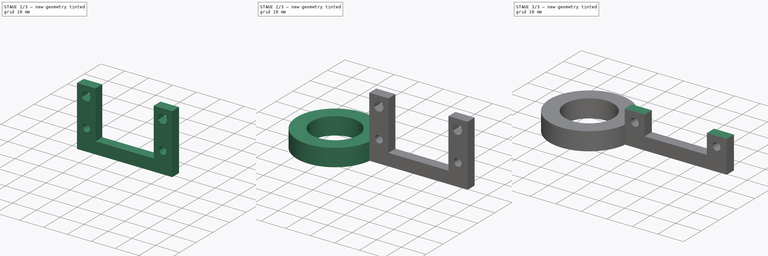
[diagram: build sequence overview — one tinted view per stage of 3, left to right]
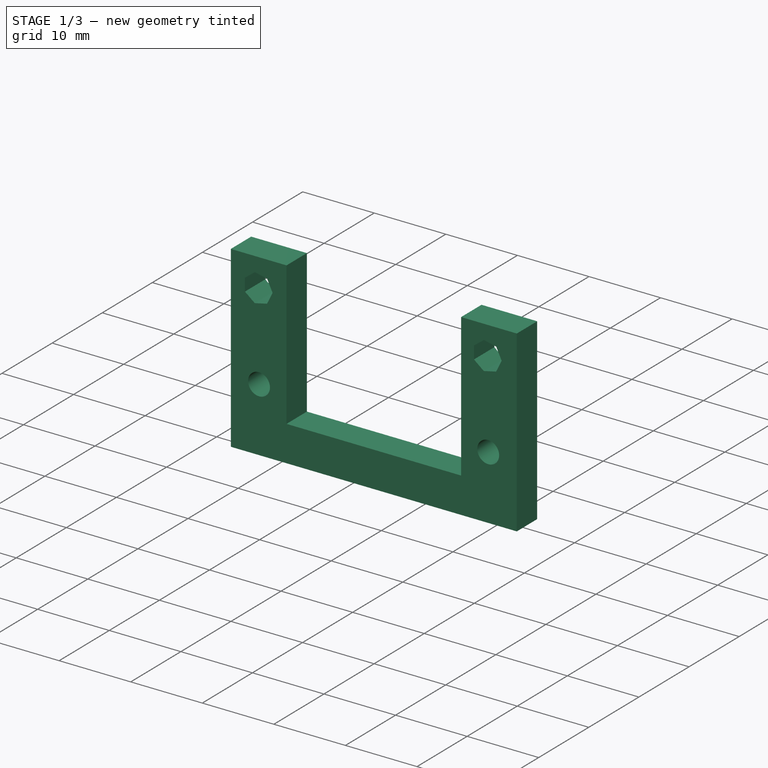
[diagram: stage 1 of 3 — iso view after this stage's code; geometry added in this stage tinted green]
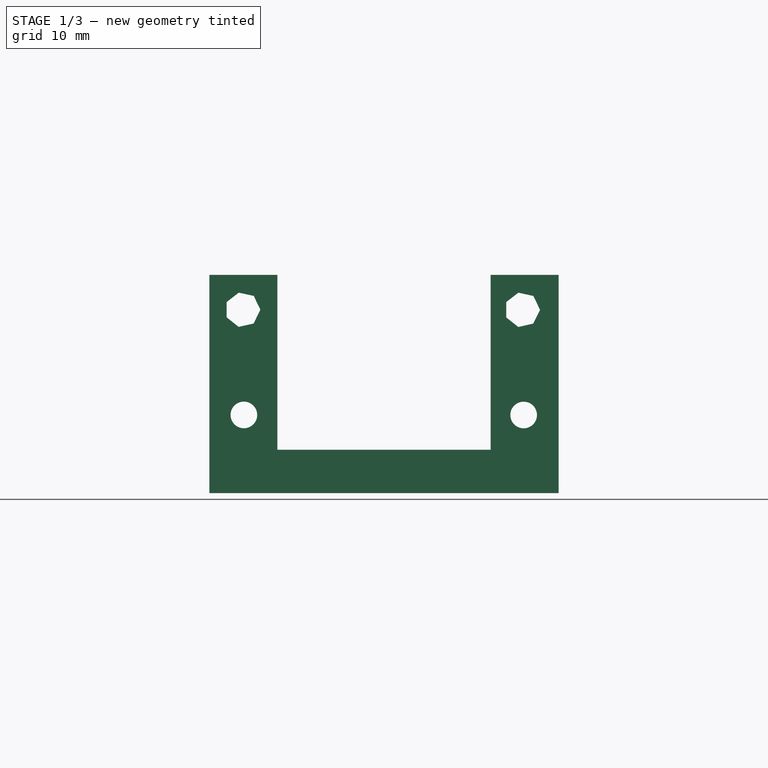
[diagram: stage 1 of 3 — front view after this stage's code; geometry added in this stage tinted green]
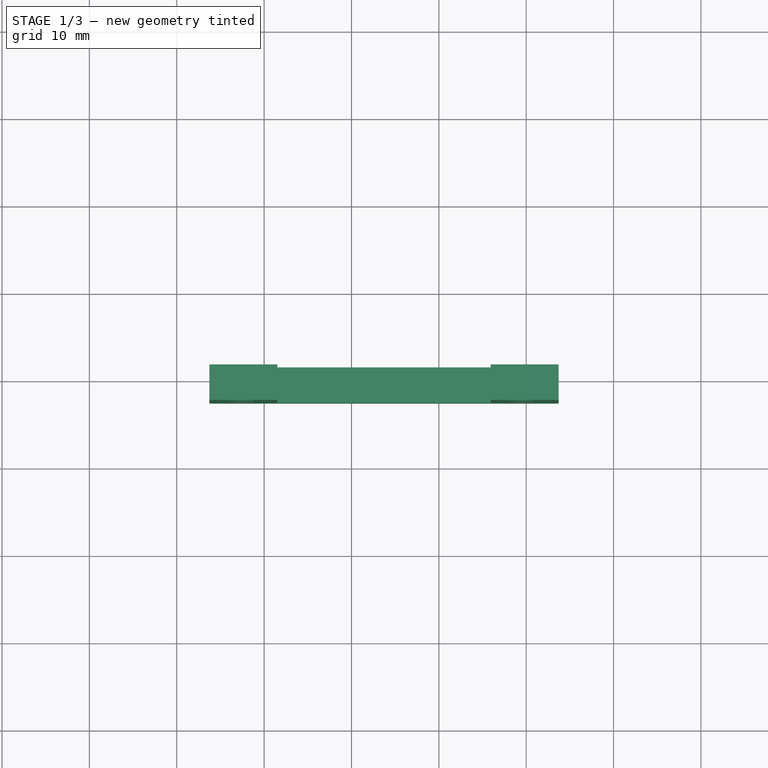
[diagram: stage 1 of 3 — top view after this stage's code; geometry added in this stage tinted green]
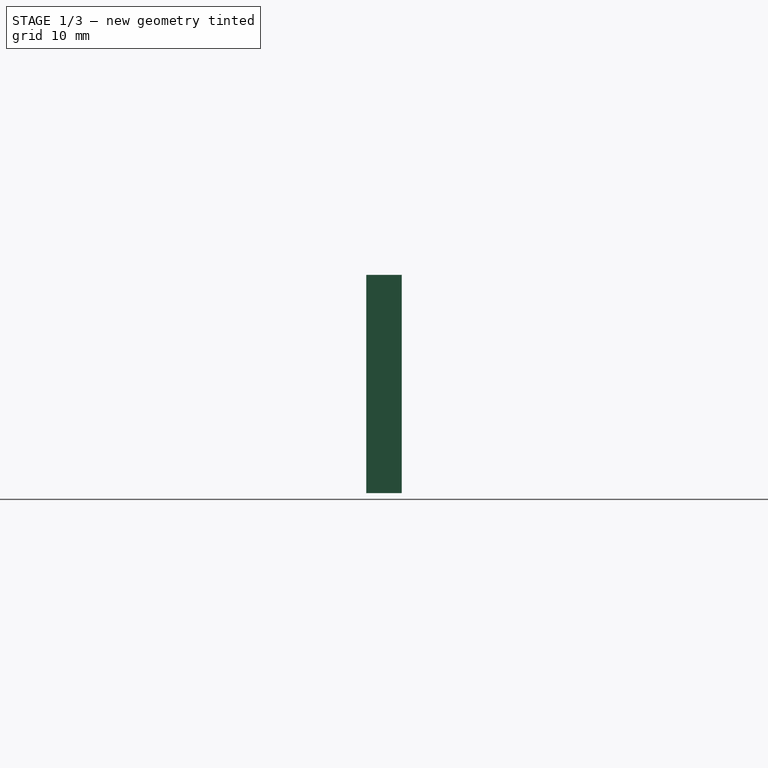
[diagram: stage 1 of 3 — right view after this stage's code; geometry added in this stage tinted green]
FCSTD DOCUMENT  (FreeCAD 0.16R6712 (Git))
Label: 18mm sensor holder
License: All rights reserved
LicenseURL: http://en.wikipedia.org/wiki/All_rights_reserved
objects: Sketcher::SketchObject×3, PartDesign::Pad×2, PartDesign::Pocket×1, Part::Box×1, Part::MultiFuse×1, Part::Cut×1
note: 12 computed .brp shape members not serialized (recipe doc carries the construction recipe); baked Part::Feature solids carry a one-line shape summary decoded from their .brp

FEATURE [Sketcher::SketchObject] Sketch001  label="bracket"
  Placement = pos=(0,-62.5234,0) rot=(1,0,0;1.5708rad)
  sketch-geometry (8):
    g0: LineSegment StartX=-26.2561 StartY=0.01423 StartZ=0 EndX=-26.2561 EndY=25.0008 EndZ=0
    g1: LineSegment StartX=-26.2561 StartY=25.0008 StartZ=0 EndX=-18.4751 EndY=25.0008 EndZ=0
    g2: LineSegment StartX=-18.4751 StartY=25.0008 StartZ=0 EndX=-18.4751 EndY=4.98502 EndZ=0
    g3: LineSegment StartX=-18.4751 StartY=4.98502 StartZ=0 EndX=5.92214 EndY=4.98502 EndZ=0
    g4: LineSegment StartX=5.92214 StartY=4.98502 StartZ=0 EndX=5.92214 EndY=25.0008 EndZ=0
    g5: LineSegment StartX=5.92214 StartY=25.0008 StartZ=0 EndX=13.7032 EndY=25.0008 EndZ=0
    g6: LineSegment StartX=13.7032 StartY=25.0008 StartZ=0 EndX=13.7032 EndY=0.01423 EndZ=0
    g7: LineSegment StartX=-26.2561 StartY=0.01423 StartZ=0 EndX=13.7032 EndY=0.01423 EndZ=0
  constraints (25):
    c: Horizontal(g1)
    c: Coincident(g2,g1)
    c: Coincident(g3,g2)
    c: Vertical(g4)
    c: Coincident(g5,g4)
    c: Horizontal(g5)
    c: Coincident(g6,g5)
    c: Horizontal(g3)
    c: Vertical(g6)
    c: Vertical(g2)
    c: Vertical(g0)
    c: Equal(g5,g1)
    c: Equal(g2,g4)
    c: Equal(g0,g6)
    c: DistanceX(g5) = 13.7032
    c: DistanceY(g5) = 25.0008
    c: Coincident(g1,g0)
    c: Coincident(g7,g0)
    c: Coincident(g7,g6)
    c: Horizontal(g7)
    c: DistanceX(g0) = -26.2561
    c: DistanceY(g0) = 0.01423
    c: DistanceX(g2) = -18.4751
    c: DistanceY(g2) = 4.98502
    c: Coincident(g4,g3)
FEATURE [PartDesign::Pad] Pad001
  Length = 4.064
  Length2 = 100
  Placement = pos=(0,-62.5234,0) rot=(1,0,0;1.5708rad)
  Reversed = true
  Sketch = -> Sketch001
  Type = 0
FEATURE [Sketcher::SketchObject] Sketch002  label="fastener holes"
  Placement = pos=(0,-62.5234,0) rot=(1,0,0;1.5708rad)
  Support = -> Pad001 [Face9]
  sketch-geometry (16):
    g0: LineSegment StartX=-21.1824 StartY=22.5887 StartZ=0 EndX=-20.4234 EndY=21.0065 EndZ=0
    g1: LineSegment StartX=-20.4234 StartY=21.0065 StartZ=0 EndX=-21.1972 EndY=19.4315 EndZ=0
    g2: LineSegment StartX=-21.1972 StartY=19.4315 StartZ=0 EndX=-22.9092 EndY=19.0462 EndZ=0
    g3: LineSegment StartX=-22.9092 StartY=19.0462 StartZ=0 EndX=-24.2844 EndY=20.1364 EndZ=0
    g4: LineSegment StartX=-24.2844 StartY=20.1364 StartZ=0 EndX=-24.2844 EndY=21.8913 EndZ=0
    g5: LineSegment StartX=-24.2844 StartY=21.8913 StartZ=0 EndX=-22.8964 EndY=22.965 EndZ=0
    g6: LineSegment StartX=-22.8964 StartY=22.965 StartZ=0 EndX=-21.1824 EndY=22.5887 EndZ=0
    g7: Circle CenterX=-22.3138 CenterY=8.96642 CenterZ=0 NormalX=0 NormalY=0 NormalZ=1 Radius=1.524
    g8: LineSegment StartX=10.823 StartY=22.5835 StartZ=0 EndX=11.5838 EndY=20.9977 EndZ=0
    g9: LineSegment StartX=11.5838 StartY=20.9977 StartZ=0 EndX=10.8082 EndY=19.4192 EndZ=0
    g10: LineSegment StartX=10.8082 StartY=19.4192 StartZ=0 EndX=9.09234 EndY=19.0332 EndZ=0
    g11: LineSegment StartX=9.09234 StartY=19.0332 StartZ=0 EndX=7.71414 EndY=20.1258 EndZ=0
    g12: LineSegment StartX=7.71414 StartY=20.1258 StartZ=0 EndX=7.71414 EndY=21.8845 EndZ=0
    g13: LineSegment StartX=7.71414 StartY=21.8845 StartZ=0 EndX=9.10522 EndY=22.9607 EndZ=0
    g14: LineSegment StartX=9.10522 StartY=22.9607 StartZ=0 EndX=10.823 EndY=22.5835 EndZ=0
    g15: Circle CenterX=9.7064 CenterY=8.95766 CenterZ=0 NormalX=0 NormalY=0 NormalZ=1 Radius=1.524
  constraints (48):
    c: Coincident(g1,g0)
    c: Coincident(g2,g1)
    c: Coincident(g3,g2)
    c: Coincident(g4,g3)
    c: Coincident(g5,g4)
    c: Coincident(g6,g5)
    c: Coincident(g6,g0)
    c: Equal(g5,g6)
    c: Equal(g6,g0)
    c: Equal(g0,g1)
    c: Equal(g1,g2)
    c: Equal(g2,g3)
    c: Equal(g3,g4)
    c: Coincident(g9,g8)
    c: Coincident(g10,g9)
    c: Coincident(g11,g10)
    c: Coincident(g12,g11)
    c: Coincident(g13,g12)
    c: Coincident(g14,g13)
    c: Coincident(g14,g8)
    c: Equal(g13,g14)
    c: Equal(g14,g8)
    c: Equal(g8,g9)
    c: Equal(g9,g10)
    c: Equal(g10,g11)
    c: Equal(g11,g12)
    c: DistanceX(g7) = -22.3138
    c: DistanceY(g7) = 8.96642
    c: DistanceX(g15) = 9.7064
    c: DistanceY(g15) = 8.95766
    c: Equal(g15,g7)
    c: Radius(g15) = 1.524
    c: Vertical(g4)
    c: Vertical(g12)
    c: DistanceX(g5) = -22.8964
    c: DistanceY(g5) = 22.965
    c: DistanceX(g13) = 9.10522
    c: DistanceY(g13) = 22.9607
    c: Parallel(g14,g6)
    c: Parallel(g2,g10)
    c: Parallel(g3,g11)
    c: Parallel(g9,g1)
    c: DistanceX(g12) = 7.71414
    c: DistanceY(g12) = 21.8845
    c: DistanceX(g4) = -24.2844
    c: DistanceX(g1) = -21.1972
    c: DistanceY(g1) = 19.4315
    c: DistanceX(g0) = -21.1824
FEATURE [PartDesign::Pocket] Pocket
  Length = 4.064
  Placement = pos=(0,-62.5234,0) rot=(1,0,0;1.5708rad)
  Sketch = -> Sketch002
  Type = 0
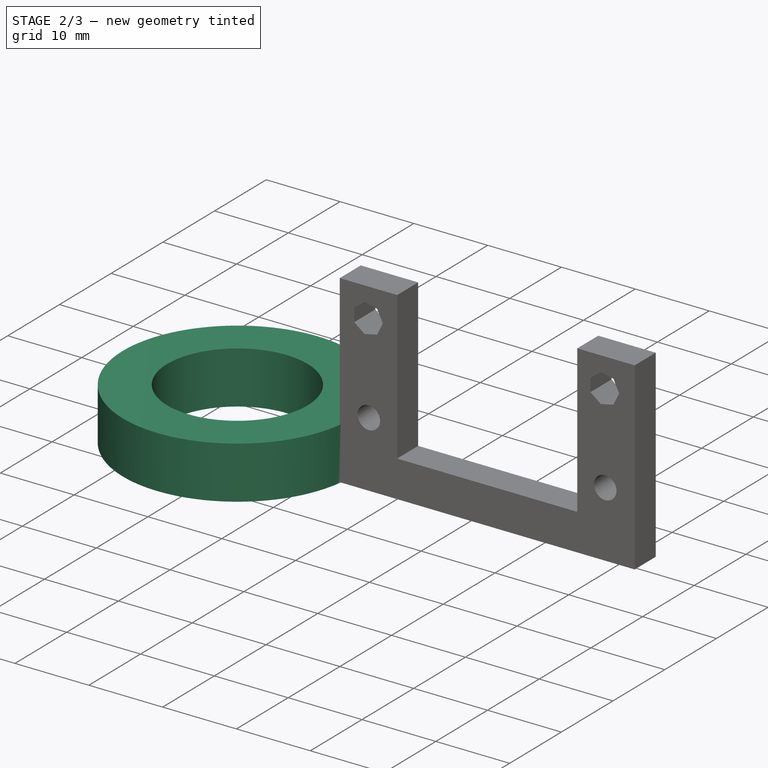
[diagram: stage 2 of 3 — iso view after this stage's code; geometry added in this stage tinted green]
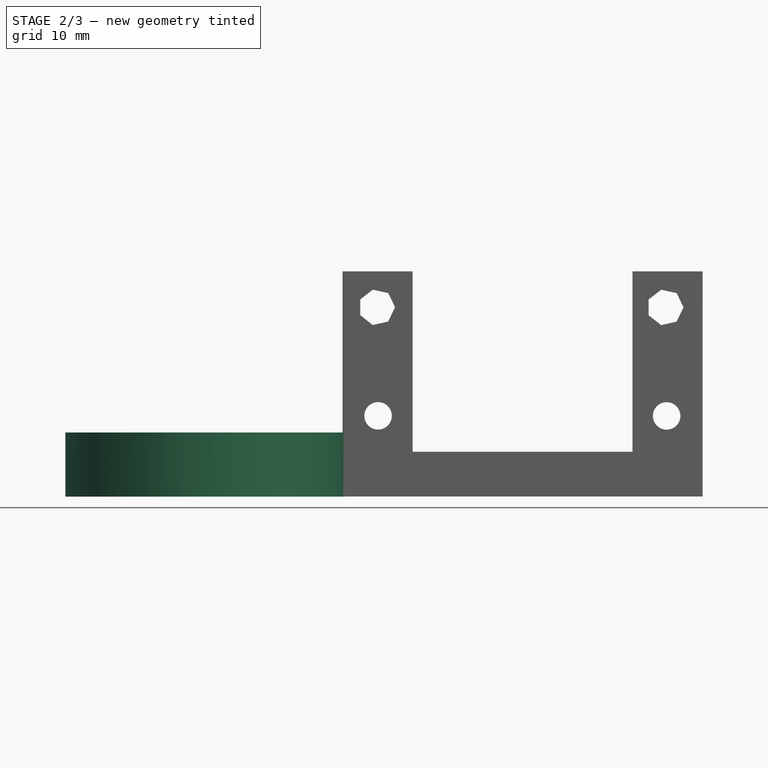
[diagram: stage 2 of 3 — front view after this stage's code; geometry added in this stage tinted green]
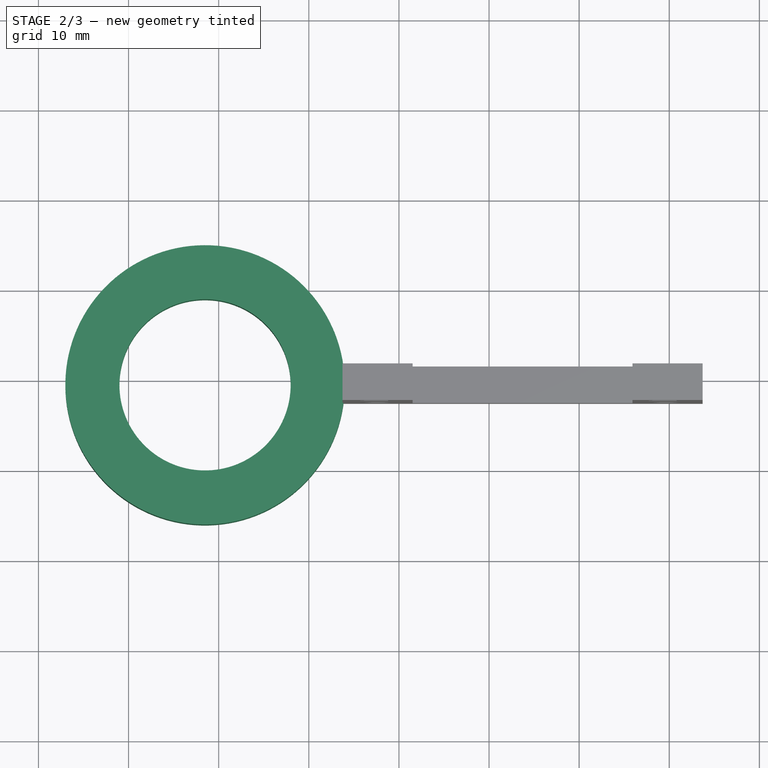
[diagram: stage 2 of 3 — top view after this stage's code; geometry added in this stage tinted green]
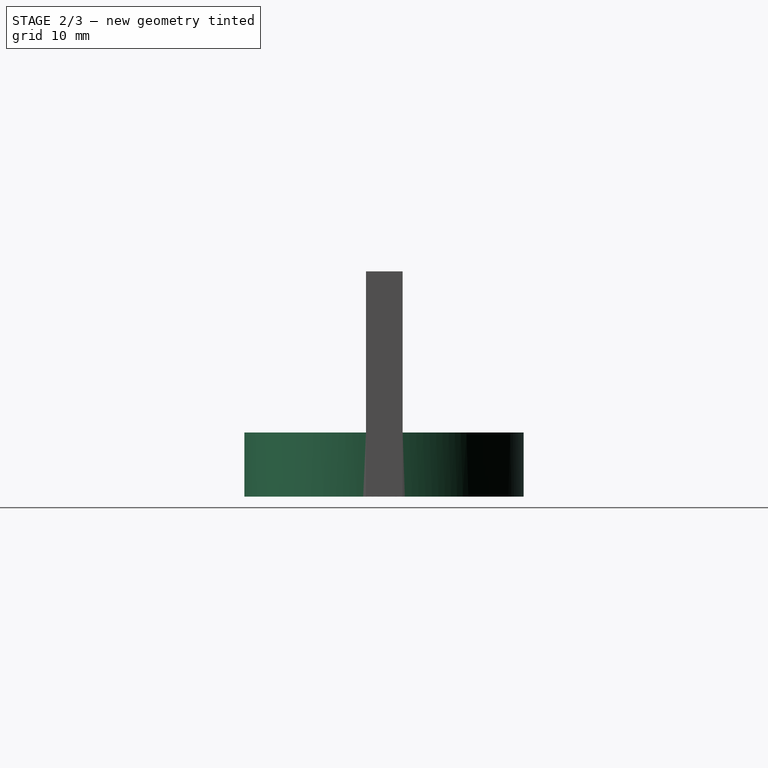
[diagram: stage 2 of 3 — right view after this stage's code; geometry added in this stage tinted green]
FEATURE [Sketcher::SketchObject] Sketch  label="sensor hole"
  Placement = pos=(-4.19989,-6e-12,2.60309e-05) rot=(1,0,0;3.14159rad)
  sketch-geometry (2):
    g0: Circle CenterX=-37.3141 CenterY=60.5299 CenterZ=0 NormalX=0 NormalY=0 NormalZ=1 Radius=15.5
    g1: Circle CenterX=-37.3141 CenterY=60.5299 CenterZ=0 NormalX=0 NormalY=0 NormalZ=1 Radius=9.5
  constraints (3):
    c: Coincident(g1,g0)
    c: Radius(g0) = 15.5
    c: Radius(g1) = 9.5
FEATURE [PartDesign::Pad] Pad
  Length = 7.112
  Length2 = 100
  Placement = pos=(-4.19989,-6e-12,2.60309e-05) rot=(1,0,0;3.14159rad)
  Reversed = true
  Sketch = -> Sketch
  Type = 0
FEATURE [Part::MultiFuse] Fusion
  Shapes = -> [Pad,Pocket]
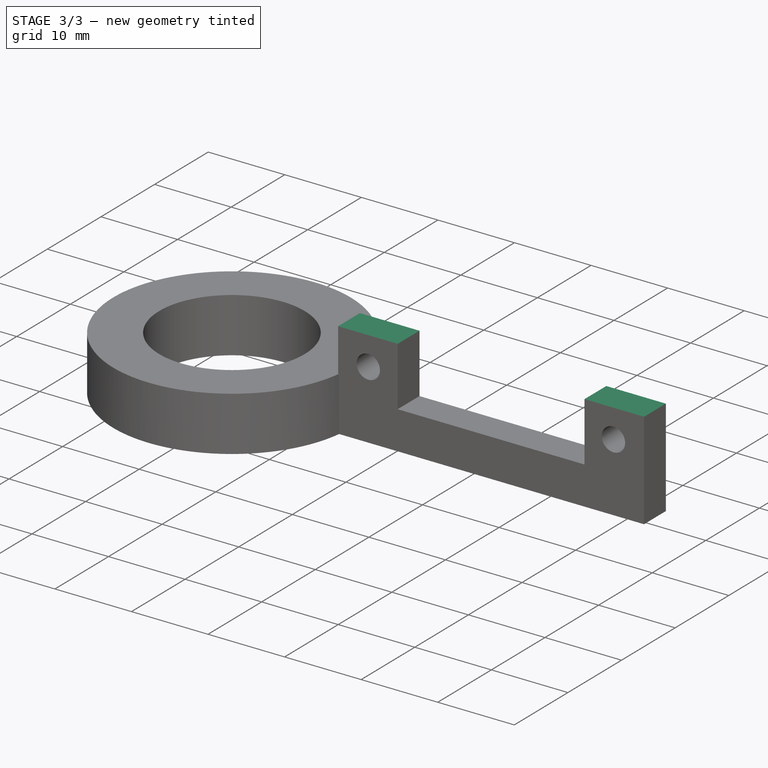
[diagram: stage 3 of 3 — iso view after this stage's code; geometry added in this stage tinted green]
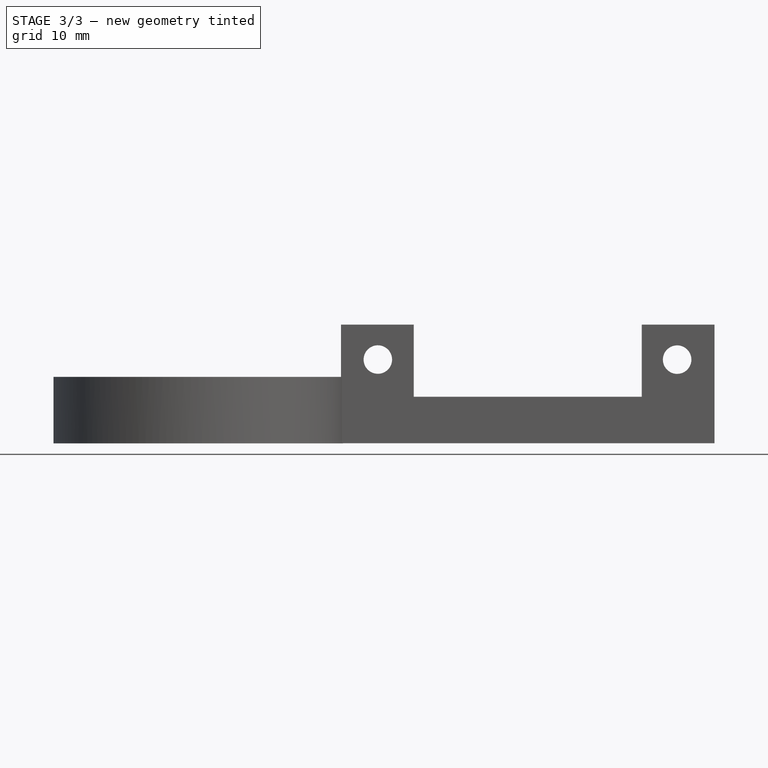
[diagram: stage 3 of 3 — front view after this stage's code; geometry added in this stage tinted green]
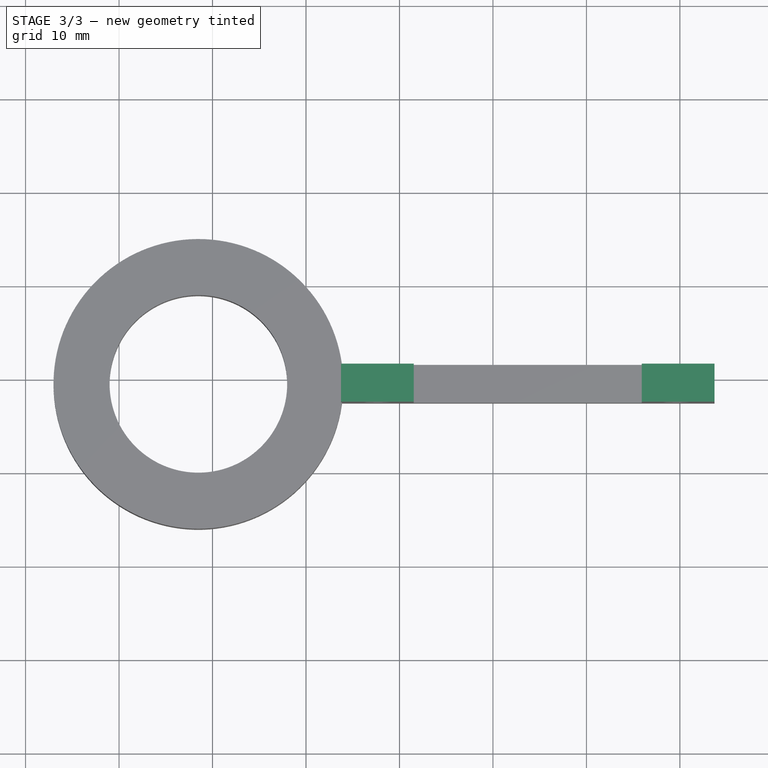
[diagram: stage 3 of 3 — top view after this stage's code; geometry added in this stage tinted green]
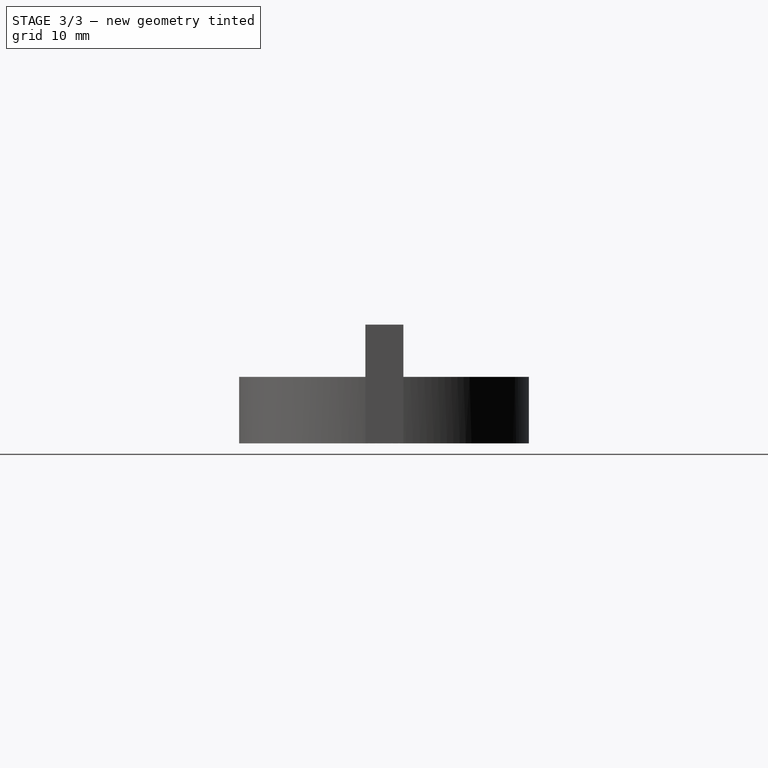
[diagram: stage 3 of 3 — right view after this stage's code; geometry added in this stage tinted green]
FEATURE [Part::Box] Box  label="Cube"
  Height = 12.7
  Length = 50.8
  Placement = pos=(-31.75,-63.5,12.7) rot=(0,0,1;0rad)
  Width = 12.7
FEATURE [Part::Cut] Cut
  Base = -> Fusion
  Tool = -> Box
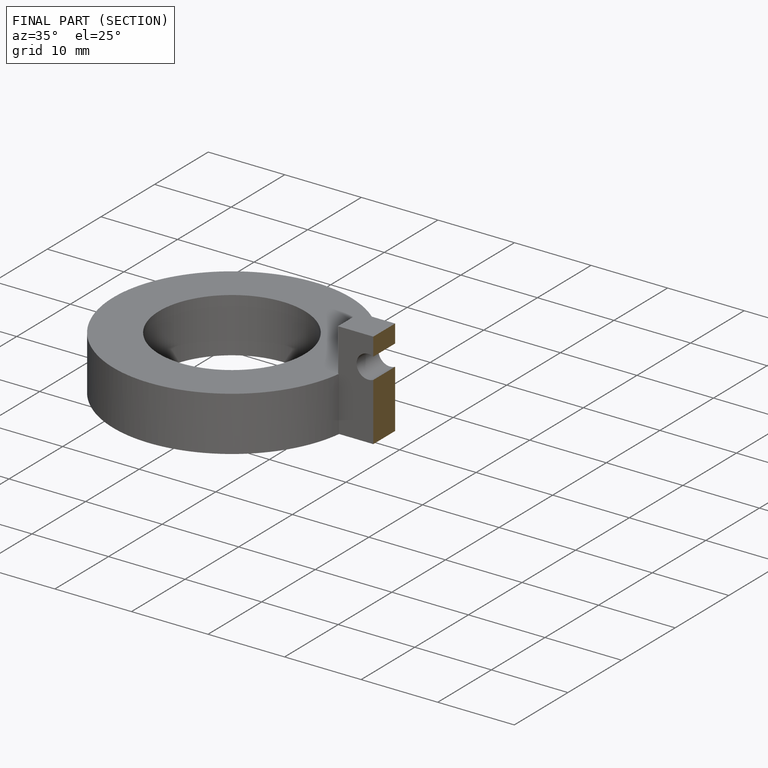
[diagram: finished part — half-section view (interior)]
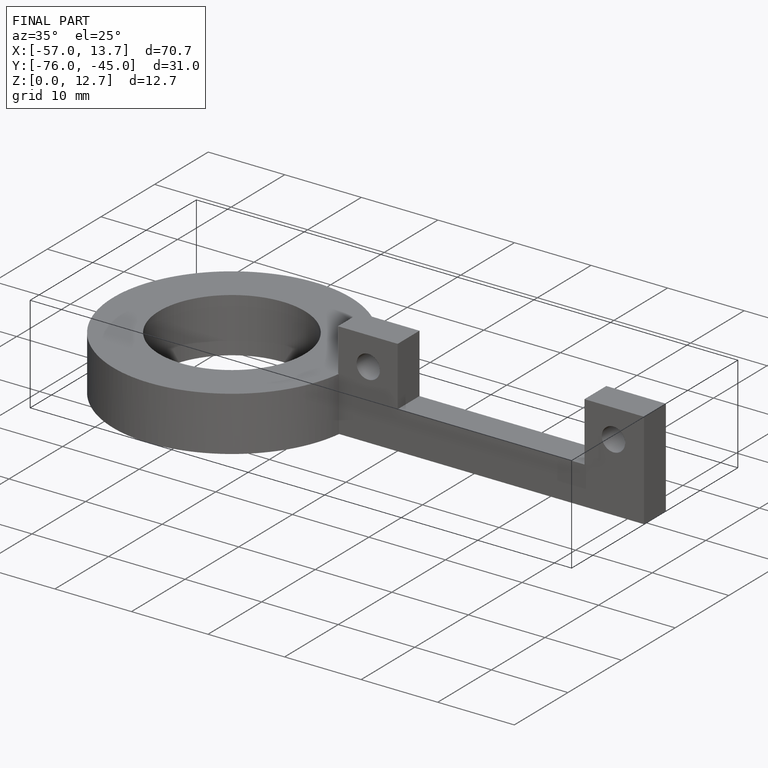
[diagram: finished part — iso view with bounding-box wireframe]
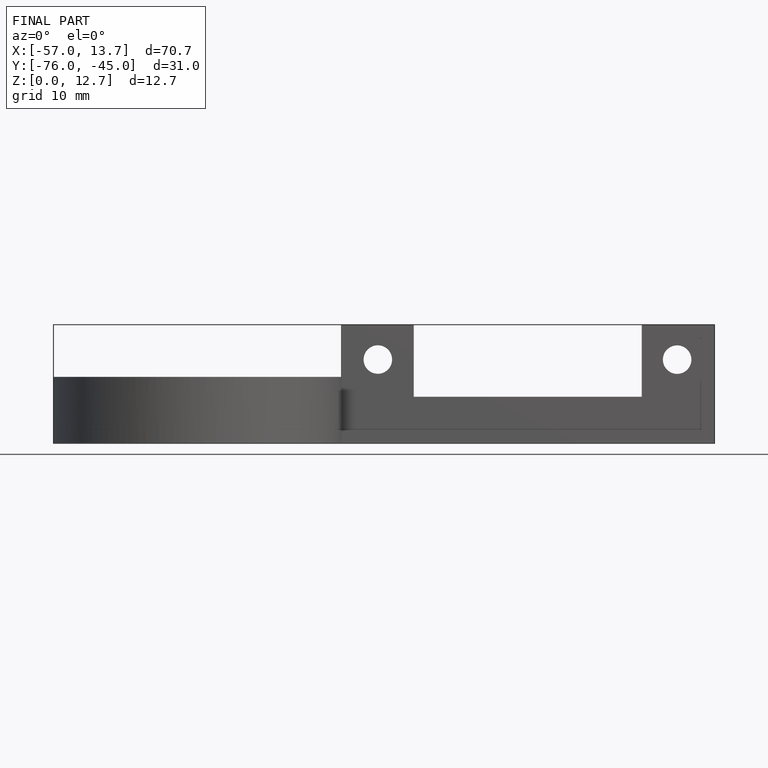
[diagram: finished part — front view with bounding-box wireframe]
